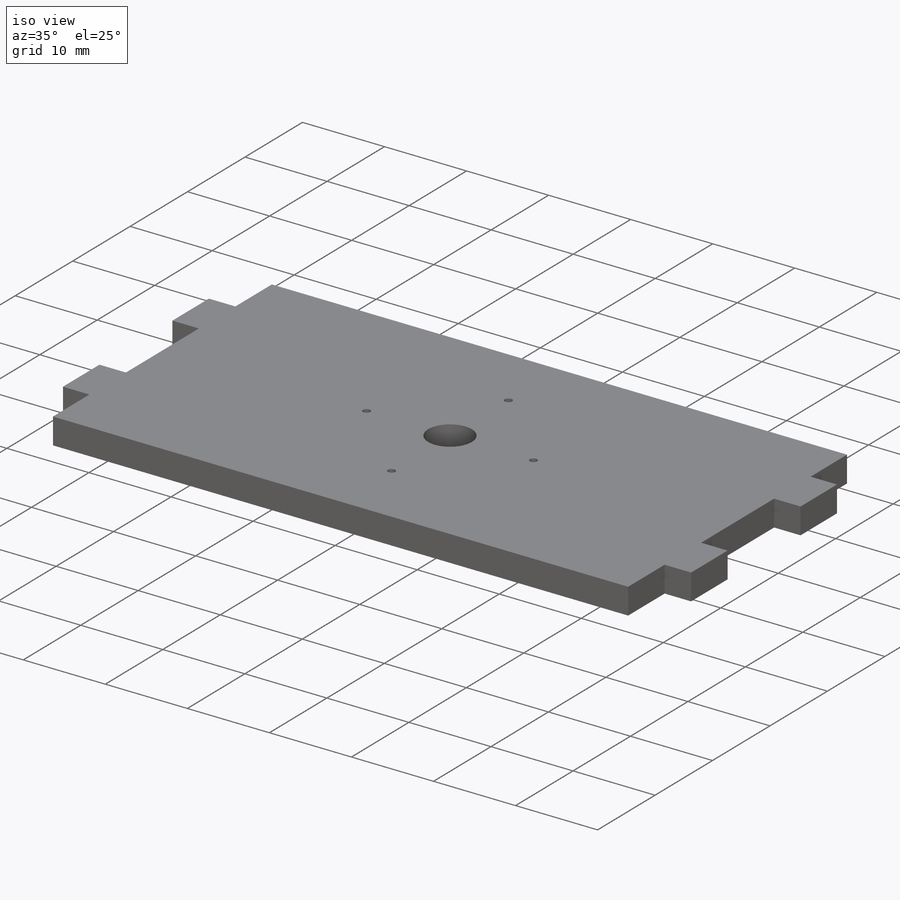
[diagram: iso view]
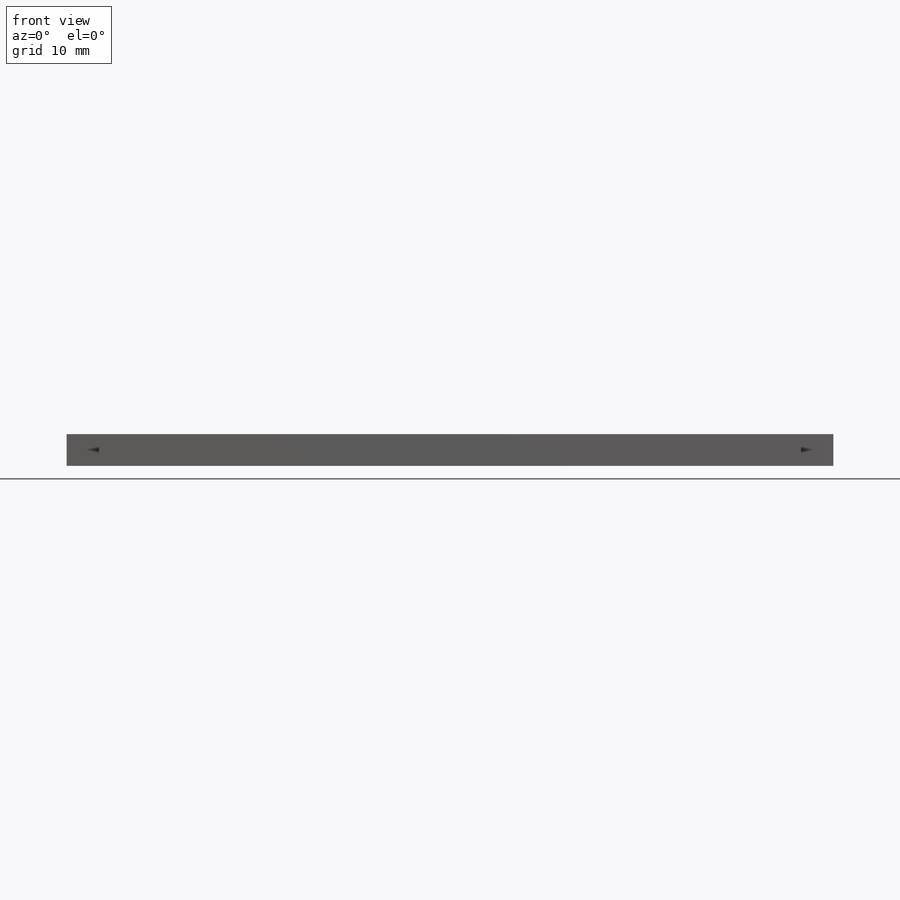
[diagram: front view]
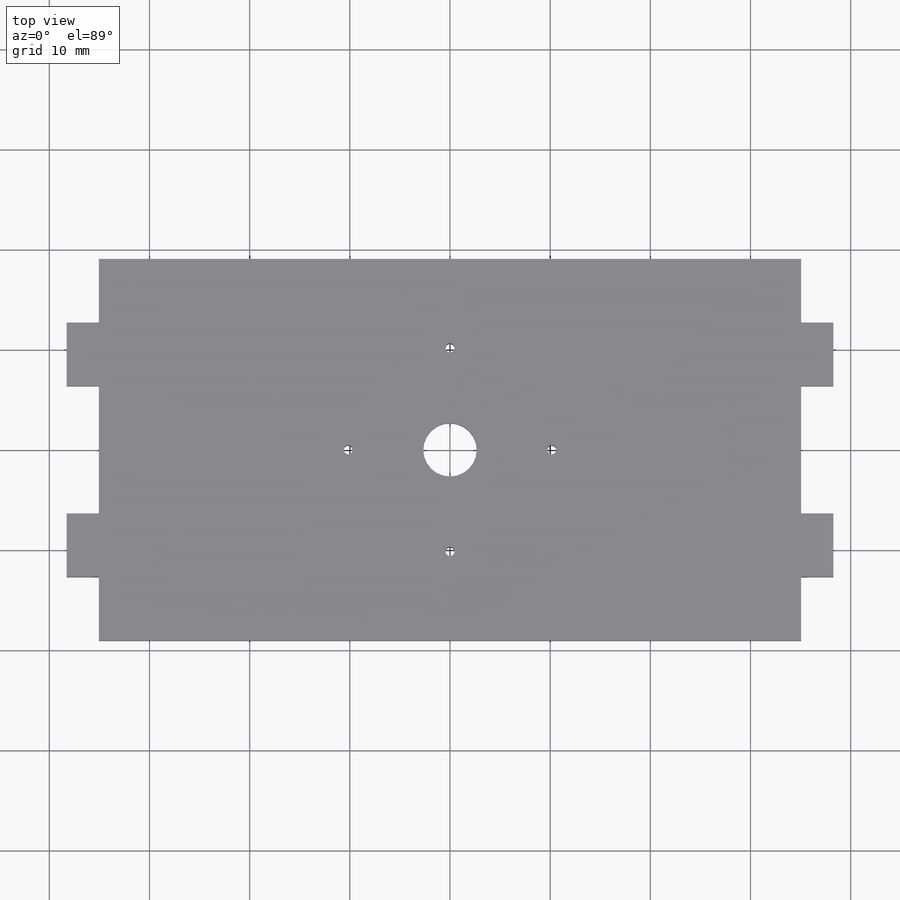
[diagram: top view]
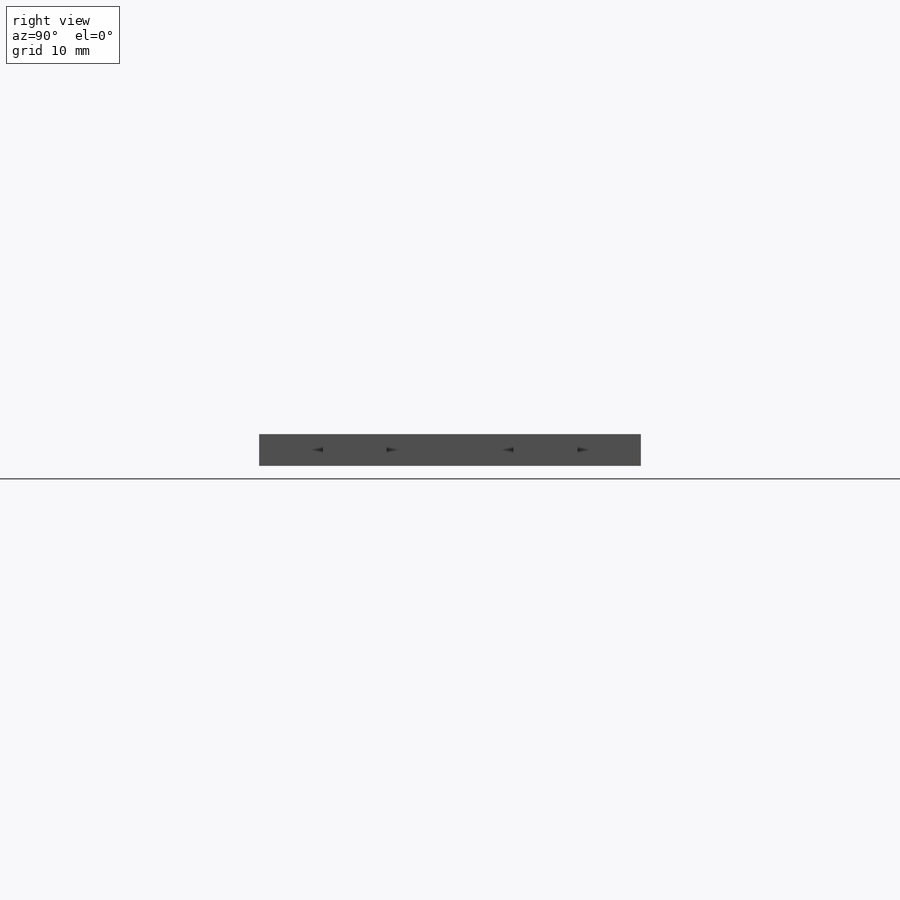
[diagram: right view]
SOLIDWORKS PART (.sldprt)
format: sldprt  version: not decoded by parser v0  size: 337,920 bytes
history: native  units: mm
features: sketch x3, extrude x2, material x1, mirror x1, cut_extrude x1 (+16 scaffold rows collapsed)
feature tree (24):
  scaffold x16  (default folders/planes/origin — collapsed)
  material  "Material <not specified>"
  sketch  "Sketch1"  dims[D1=38.1mm D2=70.104mm]
  extrude  "Boss-Extrude1"  Depth=3.175mm
  sketch  "Sketch2"  dims[D1=3.2258mm D2=3.2258mm D3=6.35mm D4=6.35mm D5=6.35mm D6=6.35mm]
  extrude  "Boss-Extrude2"  Depth=3.175mm
  mirror  "Mirror1"
  sketch  "Sketch4"  dims[D1=5.334mm D3=0.889mm D2=10.16mm D4=4.0]
  cut_extrude  "cut for servo horn mount holes"  [1 undecoded]
decode coverage: 5 of 7 modeling features carry decoded parameters
note: 1 parameter value undecoded
note: suppression state not decoded; provenance and decode notes live in map.json
